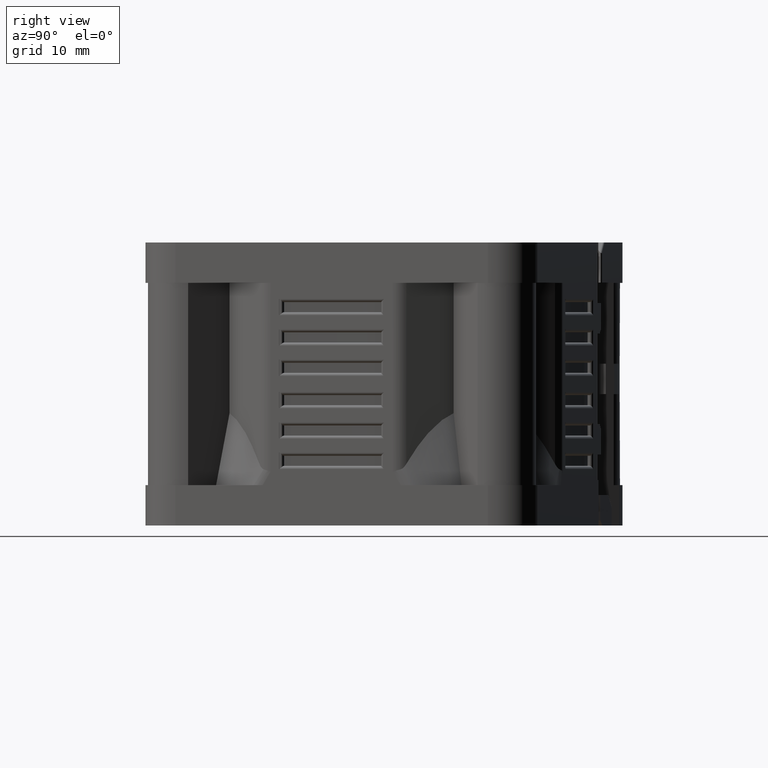
[diagram: clean part render]
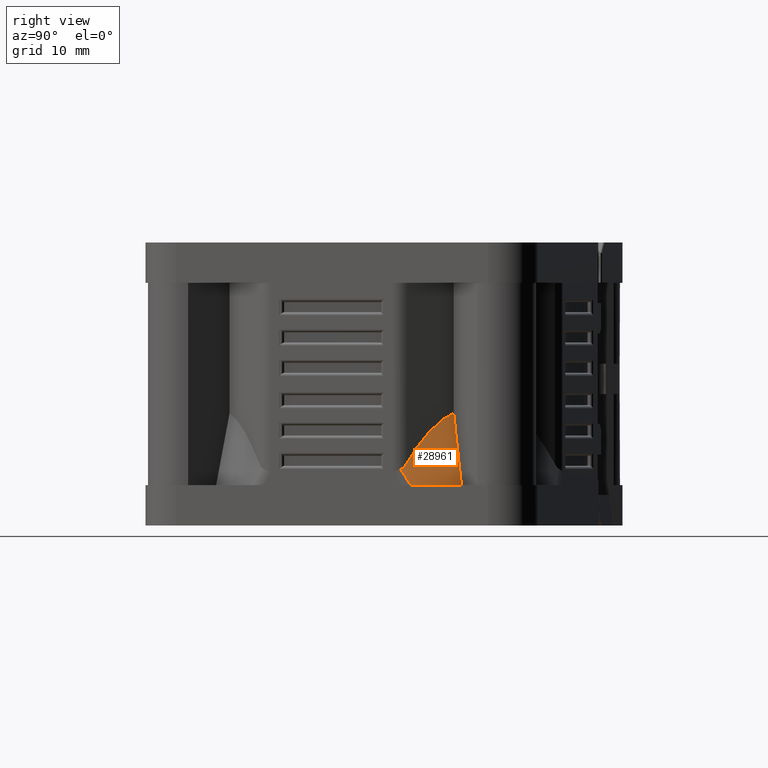
[diagram: same view with one face highlighted and labeled with its STEP entity id]
A machine part, right view. The second image highlights one B-rep face of the part: STEP entity #28961.
In plain terms, the highlighted conical surface has half-angle 12 deg.
Its self-contained STEP definition (entity closure, byte-faithful):
#386=CARTESIAN_POINT('',(0.E0,0.E0,4.E0));
#387=DIRECTION('',(0.E0,0.E0,1.E0));
#388=DIRECTION('',(9.923975237515E-1,1.230737780837E-1,0.E0));
#389=AXIS2_PLACEMENT_3D('',#386,#387,#388);
#6851=CARTESIAN_POINT('',(2.121693185466E1,2.631242428830E0,3.999999901990E0));
#6862=CARTESIAN_POINT('',(2.081440419267E1,2.214192096086E0,6.105760050872E0));
#6863=CARTESIAN_POINT('',(2.082921459814E1,2.182431498964E0,6.052279528757E0));
#6864=CARTESIAN_POINT('',(2.085708457626E1,2.118238903100E0,5.953310368499E0));
#6865=CARTESIAN_POINT('',(2.089341041134E1,2.021077681113E0,5.828257787994E0));
#6866=CARTESIAN_POINT('',(2.092431780164E1,1.923292185189E0,5.726715711202E0));
#6867=CARTESIAN_POINT('',(2.094982235197E1,1.825510427766E0,5.648206487009E0));
#6868=CARTESIAN_POINT('',(2.096977588892E1,1.729531927021E0,5.592808564253E0));
#6869=CARTESIAN_POINT('',(2.097947033681E1,1.668376567750E0,5.570318407141E0));
#6870=CARTESIAN_POINT('',(2.098352127677E1,1.638609475530E0,5.562221060591E0));
#6872=CARTESIAN_POINT('',(2.098352127677E1,1.638609475530E0,5.562221060591E0));
#6890=CARTESIAN_POINT('',(1.863398064401E1,6.890090898728E0,1.111549243382E1));
#6891=CARTESIAN_POINT('',(1.869593648646E1,6.757226165834E0,1.105888777689E1));
#6892=CARTESIAN_POINT('',(1.882358867560E1,6.483475164490E0,1.092696558202E1));
#6893=CARTESIAN_POINT('',(1.902354907844E1,6.054658689103E0,1.066923158123E1));
#6894=CARTESIAN_POINT('',(1.923625593738E1,5.598507386220E0,1.033838555724E1));
#6895=CARTESIAN_POINT('',(1.946256770216E1,5.113180135533E0,9.922620373976E0));
#6896=CARTESIAN_POINT('',(1.970371719838E1,4.596033763558E0,9.408195123351E0));
#6897=CARTESIAN_POINT('',(1.995939334928E1,4.047733027265E0,8.783510169619E0));
#6898=CARTESIAN_POINT('',(2.022930818114E1,3.468904255977E0,8.037182415712E0));
#6899=CARTESIAN_POINT('',(2.051327595190E1,2.859913053331E0,7.158252166515E0));
#6900=CARTESIAN_POINT('',(2.071270042291E1,2.432296534181E0,6.473011944736E0));
#6901=CARTESIAN_POINT('',(2.081440419267E1,2.214192096086E0,6.105760050872E0));
#6990=CARTESIAN_POINT('',(2.121693185466E1,2.631242428830E0,3.999999901990E0));
#6991=CARTESIAN_POINT('',(2.121401565764E1,2.618761364232E0,4.020841202578E0));
#6992=CARTESIAN_POINT('',(2.115973235947E1,2.387333986662E0,4.407388433283E0));
#6993=CARTESIAN_POINT('',(2.109372098508E1,2.104984640774E0,4.858573795557E0));
#6994=CARTESIAN_POINT('',(2.102754415417E1,1.824737779533E0,5.284095037111E0));
#6995=CARTESIAN_POINT('',(2.101694220076E1,1.779837659845E0,5.351620979410E0));
#6997=CARTESIAN_POINT('',(2.101694220076E1,1.779837659845E0,5.351620979410E0));
#6998=CARTESIAN_POINT('',(2.100589635514E1,1.733056264127E0,5.421975520792E0));
#6999=CARTESIAN_POINT('',(2.099474344280E1,1.686047717411E0,5.492209886295E0));
#7000=CARTESIAN_POINT('',(2.098352127677E1,1.638609475530E0,5.562221060591E0));
#7002=CARTESIAN_POINT('',(1.863398064401E1,6.890090898728E0,1.111549243382E1));
#7003=CARTESIAN_POINT('',(1.878164784185E1,6.975345633879E0,1.032478759767E1));
#7004=CARTESIAN_POINT('',(1.907685113990E1,7.145779415781E0,8.743436574880E0));
#7005=CARTESIAN_POINT('',(1.951933287244E1,7.401243482730E0,6.371603361185E0));
#7006=CARTESIAN_POINT('',(1.981411635287E1,7.571434885543E0,4.790513026606E0));
#7007=CARTESIAN_POINT('',(1.996145379693E1,7.656499239405E0,4.E0));
#12098=VERTEX_POINT('',#6851);
#12099=CARTESIAN_POINT('',(1.996145379693E1,7.656499239405E0,4.E0));
#12100=VERTEX_POINT('',#12099);
#12645=VERTEX_POINT('',#6872);
#12646=VERTEX_POINT('',#6997);
#12647=CARTESIAN_POINT('',(2.081440419267E1,2.214192096086E0,6.105760050872E0));
#12648=VERTEX_POINT('',#12647);
#12649=CARTESIAN_POINT('',(1.863398064401E1,6.890090898728E0,1.111549243382E1));
#12650=VERTEX_POINT('',#12649);
#28948=CARTESIAN_POINT('',(0.E0,0.E0,7.557746216910E0));
#28949=DIRECTION('',(0.E0,0.E0,-1.E0));
#28950=DIRECTION('',(-2.588190451025E-1,-9.659258262891E-1,0.E0));
#28951=AXIS2_PLACEMENT_3D('',#28948,#28949,#28950);
#28952=CONICAL_SURFACE('',#28951,2.062324490933E1,1.2E1);
#28953=ORIENTED_EDGE('',*,*,#28779,.T.);
#28954=ORIENTED_EDGE('',*,*,#28777,.T.);
#28955=ORIENTED_EDGE('',*,*,#28793,.F.);
#28956=ORIENTED_EDGE('',*,*,#28810,.F.);
#28957=ORIENTED_EDGE('',*,*,#28823,.T.);
#28958=ORIENTED_EDGE('',*,*,#14832,.F.);
#28959=EDGE_LOOP('',(#28953,#28954,#28955,#28956,#28957,#28958));
#28960=FACE_OUTER_BOUND('',#28959,.F.);
#28961=ADVANCED_FACE('',(#28960),#28952,.T.);
#390=CIRCLE('',#389,2.137946721249E1);
#6871=B_SPLINE_CURVE_WITH_KNOTS('',3,(#6862,#6863,#6864,#6865,#6866,#6867,#6868,
#6869,#6870),.UNSPECIFIED.,.F.,.F.,(4,1,1,1,1,1,4),(0.E0,1.666666666667E-1,
3.333333333333E-1,5.E-1,6.666666666667E-1,8.333333333333E-1,1.E0),
.UNSPECIFIED.);
#6902=B_SPLINE_CURVE_WITH_KNOTS('',3,(#6890,#6891,#6892,#6893,#6894,#6895,#6896,
#6897,#6898,#6899,#6900,#6901),.UNSPECIFIED.,.F.,.F.,(4,1,1,1,1,1,1,1,1,4),
(0.E0,1.111111111111E-1,2.222222222222E-1,3.333333333333E-1,4.444444444444E-1,
5.555555555556E-1,6.666666666667E-1,7.777777777778E-1,8.888888888889E-1,1.E0),
.UNSPECIFIED.);
#6996=B_SPLINE_CURVE_WITH_KNOTS('',3,(#6990,#6991,#6992,#6993,#6994,#6995),
.UNSPECIFIED.,.F.,.F.,(4,1,1,4),(0.E0,4.570943823602E-2,8.482083400894E-1,1.E0),
.UNSPECIFIED.);
#7001=B_SPLINE_CURVE_WITH_KNOTS('',3,(#6997,#6998,#6999,#7000),.UNSPECIFIED.,
.F.,.F.,(4,4),(0.E0,1.E0),.UNSPECIFIED.);
#7008=B_SPLINE_CURVE_WITH_KNOTS('',3,(#7002,#7003,#7004,#7005,#7006,#7007),
.UNSPECIFIED.,.F.,.F.,(4,1,1,4),(0.E0,3.333333333333E-1,6.666666666667E-1,1.E0),
.UNSPECIFIED.);
#14832=EDGE_CURVE('',#12098,#12100,#390,.T.);
#28777=EDGE_CURVE('',#12646,#12645,#7001,.T.);
#28779=EDGE_CURVE('',#12098,#12646,#6996,.T.);
#28793=EDGE_CURVE('',#12648,#12645,#6871,.T.);
#28810=EDGE_CURVE('',#12650,#12648,#6902,.T.);
#28823=EDGE_CURVE('',#12650,#12100,#7008,.T.);